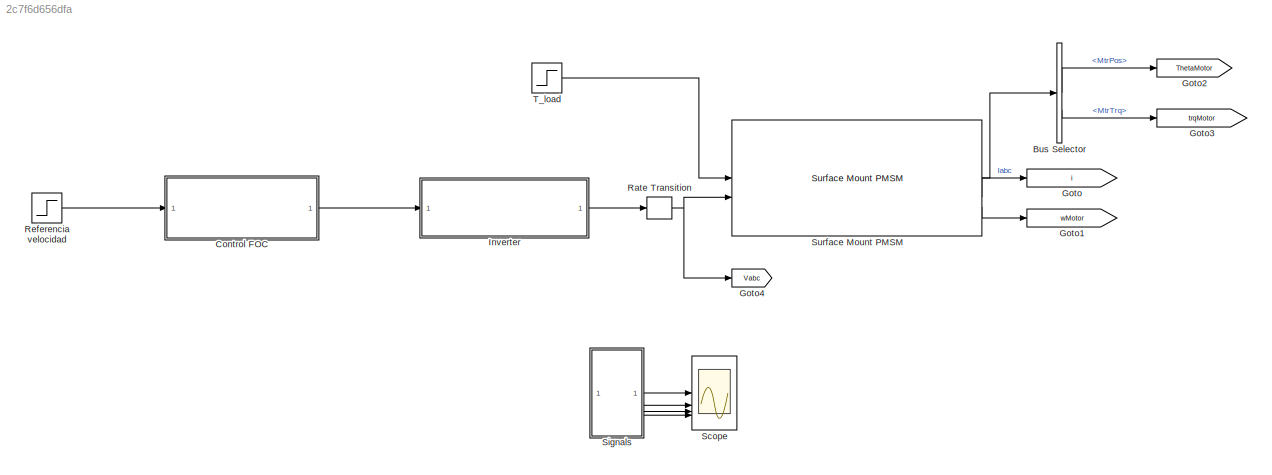
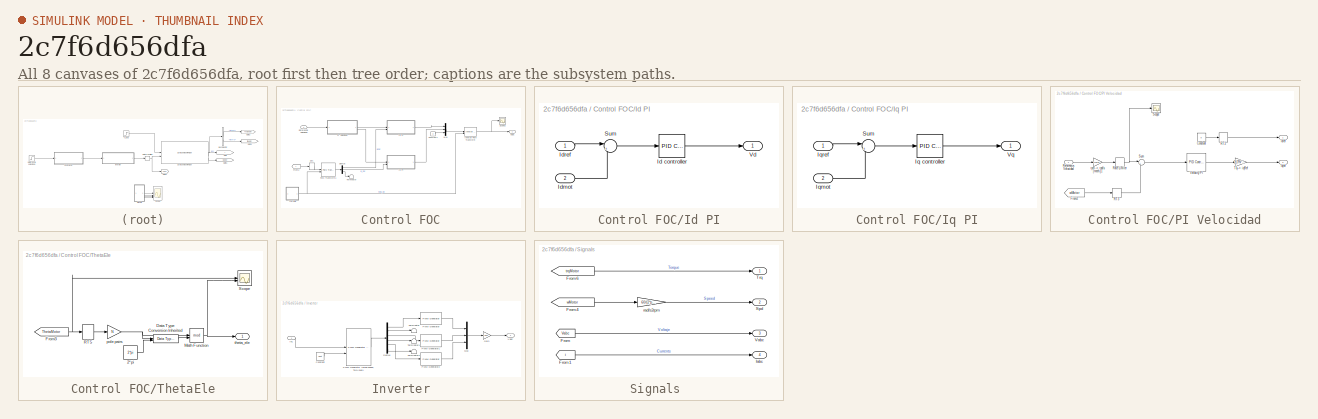
[diagram: thumbnail index - all 8 canvases of the model, root first then tree order]
MODEL slx_2c7f6d656dfa
KIND model
CONFIG AbsTol = 1e-3
CONFIG EnableMultiTasking = on
CONFIG FixedStep = Ts
CONFIG MaxStep = 1e-5
CONFIG MinStep = auto
CONFIG PreLoadFcn = % PMSM parameters \nPM = 0.005237624506507; % Permanent magnet flux linkage\nLd = 0.00105;  % d-axis inductance\nLq = 0.00105;  % q-axis inductance\nL0 = 0.00105;  % 0-axis inductance\nRs = 0.75; % Stator resistance\nN = 4; % Number of pole pairs\nJ = 2.4018552467e-06; % Moment of inertia\nB = 1.160371049300000e-05; % Damping\n\n% Operating and derived limits\nTrated = 0.056566344670276 %Par nominal\n
CONFIG RelTol = 1e-3
CONFIG SampleTimeConstraint = Unconstrained
CONFIG SolverName = VariableStepAuto
CONFIG StartTime = 0.0
CONFIG StopTime = 3.5
BLOCK [BusSelector] Bus Selector
  OutputSignals = MtrPos,MtrTrq
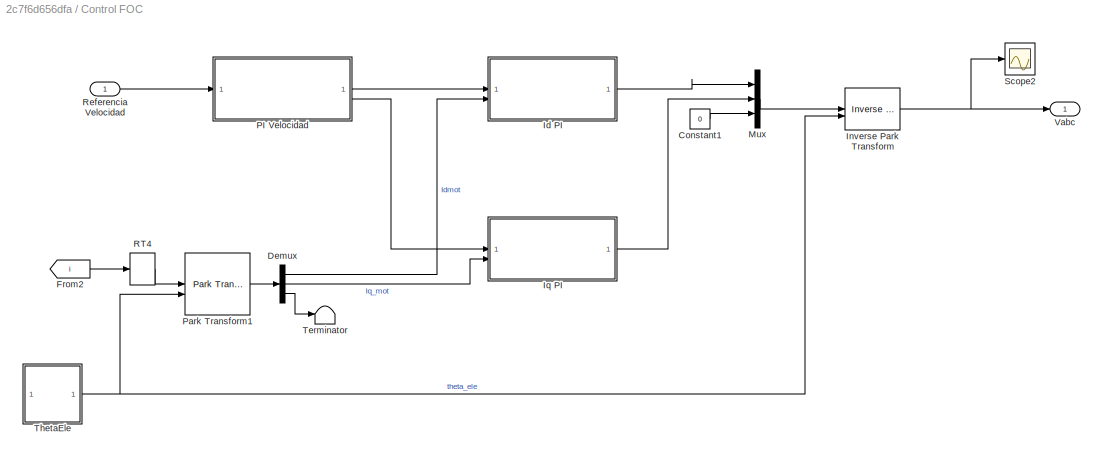
BLOCK [SubSystem] Control FOC
BLOCK [Constant] Control FOC/Constant1
  SampleTime = Tcurr
  Value = 0
BLOCK [Demux] Control FOC/Demux
  Outputs = 3
BLOCK [From] Control FOC/From2
  GotoTag = i
  TagVisibility = global
BLOCK [SubSystem] Control FOC/Id PI
BLOCK [Reference] Control FOC/Id PI/Id controller  REF=slpidlib/PID Controller
  LibrarySourceBlock = simulink/Continuous/PID Controller
  SourceBlock = slpidlib/PID Controller
  SourceType = PID 1dof
BLOCK [Inport] Control FOC/Id PI/Idmot
  Port = 2
BLOCK [Inport] Control FOC/Id PI/Idref
BLOCK [Sum] Control FOC/Id PI/Sum
  Inputs = |+-
BLOCK [Outport] Control FOC/Id PI/Vd
BLOCK [Reference] Control FOC/Inverse Park Transform  REF=eeTransforms/Inverse
Park Transform
  SourceBlock = eeTransforms/Inverse\nPark Transform
  SourceType = Inverse Park Transform
BLOCK [SubSystem] Control FOC/Iq PI
BLOCK [Reference] Control FOC/Iq PI/Iq controller  REF=slpidlib/PID Controller
  LibrarySourceBlock = simulink/Continuous/PID Controller
  SourceBlock = slpidlib/PID Controller
  SourceType = PID 1dof
BLOCK [Inport] Control FOC/Iq PI/Iqmot
  Port = 2
BLOCK [Inport] Control FOC/Iq PI/Iqref
BLOCK [Sum] Control FOC/Iq PI/Sum
  Inputs = |+-
BLOCK [Outport] Control FOC/Iq PI/Vq
BLOCK [Mux] Control FOC/Mux
  DisplayOption = bar
  Inputs = 3
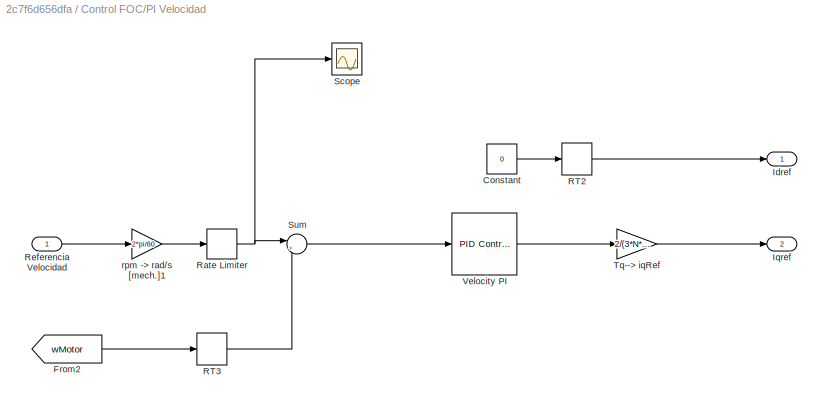
BLOCK [SubSystem] Control FOC/PI Velocidad
BLOCK [Constant] Control FOC/PI Velocidad/Constant
  Value = 0
BLOCK [From] Control FOC/PI Velocidad/From2
  GotoTag = wMotor
  TagVisibility = global
BLOCK [Outport] Control FOC/PI Velocidad/Idref
BLOCK [Outport] Control FOC/PI Velocidad/Iqref
  Port = 2
BLOCK [RateTransition] Control FOC/PI Velocidad/RT2
  NameLocation = top
  OutPortSampleTime = Tspeed
BLOCK [RateTransition] Control FOC/PI Velocidad/RT3
  NameLocation = top
  OutPortSampleTime = Tspeed
BLOCK [RateLimiter] Control FOC/PI Velocidad/Rate Limiter
  FallingSlewLimit = -50
  NameLocation = top
  RisingSlewLimit = 50
  SampleTimeMode = inherited
BLOCK [Inport] Control FOC/PI Velocidad/Referencia Velocidad
BLOCK [Scope] Control FOC/PI Velocidad/Scope
  Floating = off
  NumInputPorts = 1
  ScopeSpecificationString = Simulink.scopes.TimeScopeBlockCfg('CurrentConfiguration', extmgr.ConfigurationSet(extmgr.Configuration('Core','General UI',true),extmgr.Configuration('Core','Source UI',true),extmgr.Configuration('Sources','WiredSimulink',true,'DataLoggingVariableName','ScopeData1'),extmgr.Configuration('Visuals','Time Domain',true,'SerializedDisplays',{struct('MinYLimReal','-1.515','MaxYLimReal','13.635','YLabelR...<+1388ch>
BLOCK [Sum] Control FOC/PI Velocidad/Sum
  Inputs = |+-
BLOCK [Gain] Control FOC/PI Velocidad/Tq--> iqRef
  Commented = through
  Gain = 2/(3*N*PM)
BLOCK [Reference] Control FOC/PI Velocidad/Velocity PI  REF=slpidlib/PID Controller
  LibrarySourceBlock = simulink/Continuous/PID Controller
  SourceBlock = slpidlib/PID Controller
  SourceType = PID 1dof
BLOCK [Gain] Control FOC/PI Velocidad/rpm -> rad//s [mech.]1
  Gain = 2*pi/60
  NameLocation = top
BLOCK [Reference] Control FOC/Park Transform1  REF=eeTransforms/Park Transform
  LibrarySourceBlock = ee_sl_lib/Mathematical\nTransforms/Park Transform
  SourceBlock = eeTransforms/Park Transform
  SourceType = Park Transform
BLOCK [RateTransition] Control FOC/RT4
  InitialCondition = [0,0,0]
  NameLocation = top
  OutPortSampleTime = Tspeed
BLOCK [Inport] Control FOC/Referencia Velocidad
BLOCK [Scope] Control FOC/Scope2
  Floating = off
  NumInputPorts = 1
  ScopeSpecificationString = Simulink.scopes.TimeScopeBlockCfg('CurrentConfiguration', extmgr.ConfigurationSet(extmgr.Configuration('Core','General UI',true),extmgr.Configuration('Core','Source UI',true),extmgr.Configuration('Sources','WiredSimulink',true,'DataLoggingVariableName','ScopeData3'),extmgr.Configuration('Visuals','Time Domain',true,'SerializedDisplays',{struct('MinYLimReal','-0.26598','MaxYLimReal','0.27358','YLab...<+1462ch>
BLOCK [Terminator] Control FOC/Terminator
BLOCK [SubSystem] Control FOC/ThetaEle
BLOCK [Constant] Control FOC/ThetaEle/2*pi
  OutDataTypeStr = Inherit: Inherit via back propagation
  SampleTime = 2e-4
  Value = 2*pi
BLOCK [Reference] Control FOC/ThetaEle/Data Type Conversion Inherited  REF=simulink/Signal
Attributes/Data Type
Conversion
Inherited
  SourceBlock = simulink/Signal\nAttributes/Data Type\nConversion\nInherited
  SourceType = Conversion Inherited
BLOCK [From] Control FOC/ThetaEle/From3
  GotoTag = ThetaMotor
  TagVisibility = global
BLOCK [Math] Control FOC/ThetaEle/Math Function
  Operator = mod
  SignedPower = on
BLOCK [RateTransition] Control FOC/ThetaEle/RT5
  NameLocation = top
  OutPortSampleTime = Tspeed
BLOCK [Scope] Control FOC/ThetaEle/Scope
  Floating = off
  NumInputPorts = 2
  ScopeSpecificationString = Simulink.scopes.TimeScopeBlockCfg('CurrentConfiguration', extmgr.ConfigurationSet(extmgr.Configuration('Core','General UI',true),extmgr.Configuration('Core','Source UI',true),extmgr.Configuration('Sources','WiredSimulink',true,'DataLoggingVariableName','ScopeData4'),extmgr.Configuration('Visuals','Time Domain',true,'SerializedDisplays',{struct('MinYLimReal','-4.31937','MaxYLimReal','7.45846','YLab...<+1427ch>
BLOCK [Gain] Control FOC/ThetaEle/pole pairs 
  Gain = N
BLOCK [Outport] Control FOC/ThetaEle/theta_ele
  VectorParamsAs1DForOutWhenUnconnected = off
BLOCK [Outport] Control FOC/Vabc
BLOCK [Goto] Goto
  GotoTag = i
  TagVisibility = global
BLOCK [Goto] Goto1
  GotoTag = wMotor
  TagVisibility = global
BLOCK [Goto] Goto2
  GotoTag = ThetaMotor
  TagVisibility = global
BLOCK [Goto] Goto3
  GotoTag = trqMotor
  TagVisibility = global
BLOCK [Goto] Goto4
  GotoTag = Vabc
  TagVisibility = global
BLOCK [SubSystem] Inverter
BLOCK [Constant] Inverter/Constant
  Value = Vbat
BLOCK [Demux] Inverter/Demux
  Outputs = 6
BLOCK [Gain] Inverter/Gain
  Gain = Vbat
BLOCK [Inport] Inverter/In1
BLOCK [Mux] Inverter/Mux
  DisplayOption = bar
  Inputs = 3
BLOCK [Reference] Inverter/PWM Generator  REF=eePwmGenerator/PWM Generator
  LibrarySourceBlock = ee_sl_lib/Pulse Width\nModulation/PWM Generator
  SourceBlock = eePwmGenerator/PWM Generator
  SourceType = PWM Generator
BLOCK [Reference] Inverter/PWM Generator (Three-phase, Two-level)  REF=eePwmGeneratorTwoLevel/PWM Generator
(Three-phase, Two-level)
  LibrarySourceBlock = eePmsmFieldOrientedControl/PMSM Field-Oriented\nControl/PWM/PWM Generator\n(Three-phase, Two-level)
  SourceBlock = eePwmGeneratorTwoLevel/PWM Generator\n(Three-phase, Two-level)
  SourceType = PWM Generator (three-phase, two-level)
BLOCK [Reference] Inverter/PWM Generator1  REF=eePwmGenerator/PWM Generator
  LibrarySourceBlock = ee_sl_lib/Pulse Width\nModulation/PWM Generator
  SourceBlock = eePwmGenerator/PWM Generator
  SourceType = PWM Generator
BLOCK [Reference] Inverter/PWM Generator2  REF=eePwmGenerator/PWM Generator
  LibrarySourceBlock = ee_sl_lib/Pulse Width\nModulation/PWM Generator
  SourceBlock = eePwmGenerator/PWM Generator
  SourceType = PWM Generator
BLOCK [Terminator] Inverter/Terminator
BLOCK [Terminator] Inverter/Terminator1
BLOCK [Terminator] Inverter/Terminator2
BLOCK [Outport] Inverter/Vabc
  VectorParamsAs1DForOutWhenUnconnected = off
BLOCK [RateTransition] Rate Transition
  Deterministic = off
  OutPortSampleTime = Tsw
BLOCK [Step] Referencia velocidad
  After = Refvel
  SampleTime = Tspeed
  Time = 0.5
BLOCK [Scope] Scope
  Floating = off
  NumInputPorts = 4
  ScopeSpecificationString = Simulink.scopes.TimeScopeBlockCfg('CurrentConfiguration', extmgr.ConfigurationSet(extmgr.Configuration('Core','General UI',true),extmgr.Configuration('Core','Source UI',true),extmgr.Configuration('Sources','WiredSimulink',true),extmgr.Configuration('Visuals','Time Domain',true,'SerializedDisplays',{struct('MinYLimReal','-0.20365','MaxYLimReal','1.37435','YLabelReal','','MinYLimMag','0.00000','MaxY...<+3767ch>
BLOCK [SubSystem] Signals 
BLOCK [From] Signals /From
  GotoTag = Vabc
  TagVisibility = global
BLOCK [From] Signals /From1
  GotoTag = i
  TagVisibility = global
BLOCK [From] Signals /From4
  GotoTag = wMotor
  TagVisibility = global
BLOCK [From] Signals /From6
  GotoTag = trqMotor
  TagVisibility = global
BLOCK [Outport] Signals /Iabc
  Port = 4
  VectorParamsAs1DForOutWhenUnconnected = off
BLOCK [Outport] Signals /Spd
  Port = 2
  VectorParamsAs1DForOutWhenUnconnected = off
BLOCK [Outport] Signals /Trq
  VectorParamsAs1DForOutWhenUnconnected = off
BLOCK [Outport] Signals /Vabc
  Port = 3
  VectorParamsAs1DForOutWhenUnconnected = off
BLOCK [Gain] Signals /rad//s2rpm
  Gain = 60/(2*pi)
BLOCK [Reference] Surface Mount PMSM  REF=autolibpmsmexterior/Surface Mount PMSM
  SourceBlock = autolibpmsmexterior/Surface Mount PMSM
  SourceType = Surface Mount PMSM
BLOCK [Step] T_load
  After = 0.75*Trated
  SampleTime = Ts
  Time = 2
LINE Bus Selector:1 -> Goto2:1
LINE Bus Selector:2 -> Goto3:1
LINE Control FOC/Constant1:1 -> Control FOC/Mux:3
LINE Control FOC/Demux:1 -> Control FOC/Id PI:2
LINE Control FOC/Demux:2 -> Control FOC/Iq PI:2
LINE Control FOC/Demux:3 -> Control FOC/Terminator:1
LINE Control FOC/From2:1 -> Control FOC/RT4:1
LINE Control FOC/Id PI/Id controller:1 -> Control FOC/Id PI/Vd:1
LINE Control FOC/Id PI/Idmot:1 -> Control FOC/Id PI/Sum:2
LINE Control FOC/Id PI/Idref:1 -> Control FOC/Id PI/Sum:1
LINE Control FOC/Id PI/Sum:1 -> Control FOC/Id PI/Id controller:1
LINE Control FOC/Id PI:1 -> Control FOC/Mux:1
NET Control FOC/Inverse Park Transform:1 -> Control FOC/Scope2:1, Control FOC/Vabc:1
LINE Control FOC/Iq PI/Iq controller:1 -> Control FOC/Iq PI/Vq:1
LINE Control FOC/Iq PI/Iqmot:1 -> Control FOC/Iq PI/Sum:2
LINE Control FOC/Iq PI/Iqref:1 -> Control FOC/Iq PI/Sum:1
LINE Control FOC/Iq PI/Sum:1 -> Control FOC/Iq PI/Iq controller:1
LINE Control FOC/Iq PI:1 -> Control FOC/Mux:2
LINE Control FOC/Mux:1 -> Control FOC/Inverse Park Transform:1
LINE Control FOC/PI Velocidad/Constant:1 -> Control FOC/PI Velocidad/RT2:1
LINE Control FOC/PI Velocidad/From2:1 -> Control FOC/PI Velocidad/RT3:1
LINE Control FOC/PI Velocidad/RT2:1 -> Control FOC/PI Velocidad/Idref:1
LINE Control FOC/PI Velocidad/RT3:1 -> Control FOC/PI Velocidad/Sum:2
NET Control FOC/PI Velocidad/Rate Limiter:1 -> Control FOC/PI Velocidad/Scope:1, Control FOC/PI Velocidad/Sum:1
LINE Control FOC/PI Velocidad/Referencia Velocidad:1 -> Control FOC/PI Velocidad/rpm -> rad//s [mech.]1:1
LINE Control FOC/PI Velocidad/Sum:1 -> Control FOC/PI Velocidad/Velocity PI:1
LINE Control FOC/PI Velocidad/Tq--> iqRef:1 -> Control FOC/PI Velocidad/Iqref:1
LINE Control FOC/PI Velocidad/Velocity PI:1 -> Control FOC/PI Velocidad/Tq--> iqRef:1
LINE Control FOC/PI Velocidad/rpm -> rad//s [mech.]1:1 -> Control FOC/PI Velocidad/Rate Limiter:1
LINE Control FOC/PI Velocidad:1 -> Control FOC/Id PI:1
LINE Control FOC/PI Velocidad:2 -> Control FOC/Iq PI:1
LINE Control FOC/Park Transform1:1 -> Control FOC/Demux:1
LINE Control FOC/RT4:1 -> Control FOC/Park Transform1:1
LINE Control FOC/Referencia Velocidad:1 -> Control FOC/PI Velocidad:1
LINE Control FOC/ThetaEle/2*pi:1 -> Control FOC/ThetaEle/Data Type Conversion Inherited:2
LINE Control FOC/ThetaEle/Data Type Conversion Inherited:1 -> Control FOC/ThetaEle/Math Function:2
NET Control FOC/ThetaEle/From3:1 -> Control FOC/ThetaEle/RT5:1, Control FOC/ThetaEle/Scope:1
NET Control FOC/ThetaEle/Math Function:1 -> Control FOC/ThetaEle/Scope:2, Control FOC/ThetaEle/theta_ele:1
LINE Control FOC/ThetaEle/RT5:1 -> Control FOC/ThetaEle/pole pairs :1
NET Control FOC/ThetaEle/pole pairs :1 -> Control FOC/ThetaEle/Data Type Conversion Inherited:1, Control FOC/ThetaEle/Math Function:1
NET Control FOC/ThetaEle:1 -> Control FOC/Inverse Park Transform:2, Control FOC/Park Transform1:2
LINE Control FOC:1 -> Inverter:1
LINE Inverter/Constant:1 -> Inverter/PWM Generator (Three-phase, Two-level):2
LINE Inverter/Demux:1 -> Inverter/PWM Generator:1
LINE Inverter/Demux:2 -> Inverter/Terminator:1
LINE Inverter/Demux:3 -> Inverter/PWM Generator1:1
LINE Inverter/Demux:4 -> Inverter/Terminator1:1
LINE Inverter/Demux:5 -> Inverter/PWM Generator2:1
LINE Inverter/Demux:6 -> Inverter/Terminator2:1
LINE Inverter/Gain:1 -> Inverter/Vabc:1
LINE Inverter/In1:1 -> Inverter/PWM Generator (Three-phase, Two-level):1
LINE Inverter/Mux:1 -> Inverter/Gain:1
LINE Inverter/PWM Generator (Three-phase, Two-level):1 -> Inverter/Demux:1
LINE Inverter/PWM Generator1:1 -> Inverter/Mux:2
LINE Inverter/PWM Generator2:1 -> Inverter/Mux:3
LINE Inverter/PWM Generator:1 -> Inverter/Mux:1
LINE Inverter:1 -> Rate Transition:1
NET Rate Transition:1 -> Goto4:1, Surface Mount PMSM:2
LINE Referencia velocidad:1 -> Control FOC:1
LINE Signals /From1:1 -> Signals /Iabc:1
LINE Signals /From4:1 -> Signals /rad//s2rpm:1
LINE Signals /From6:1 -> Signals /Trq:1
LINE Signals /From:1 -> Signals /Vabc:1
LINE Signals /rad//s2rpm:1 -> Signals /Spd:1
LINE Signals :1 -> Scope:1
LINE Signals :2 -> Scope:2
LINE Signals :3 -> Scope:3
LINE Signals :4 -> Scope:4
LINE Surface Mount PMSM:1 -> Bus Selector:1
LINE Surface Mount PMSM:2 -> Goto:1
LINE Surface Mount PMSM:3 -> Goto1:1
LINE T_load:1 -> Surface Mount PMSM:1
note: NET lines group one-source signal fan-out (src -> all destinations, sorted); 1:1 wires keep LINE
